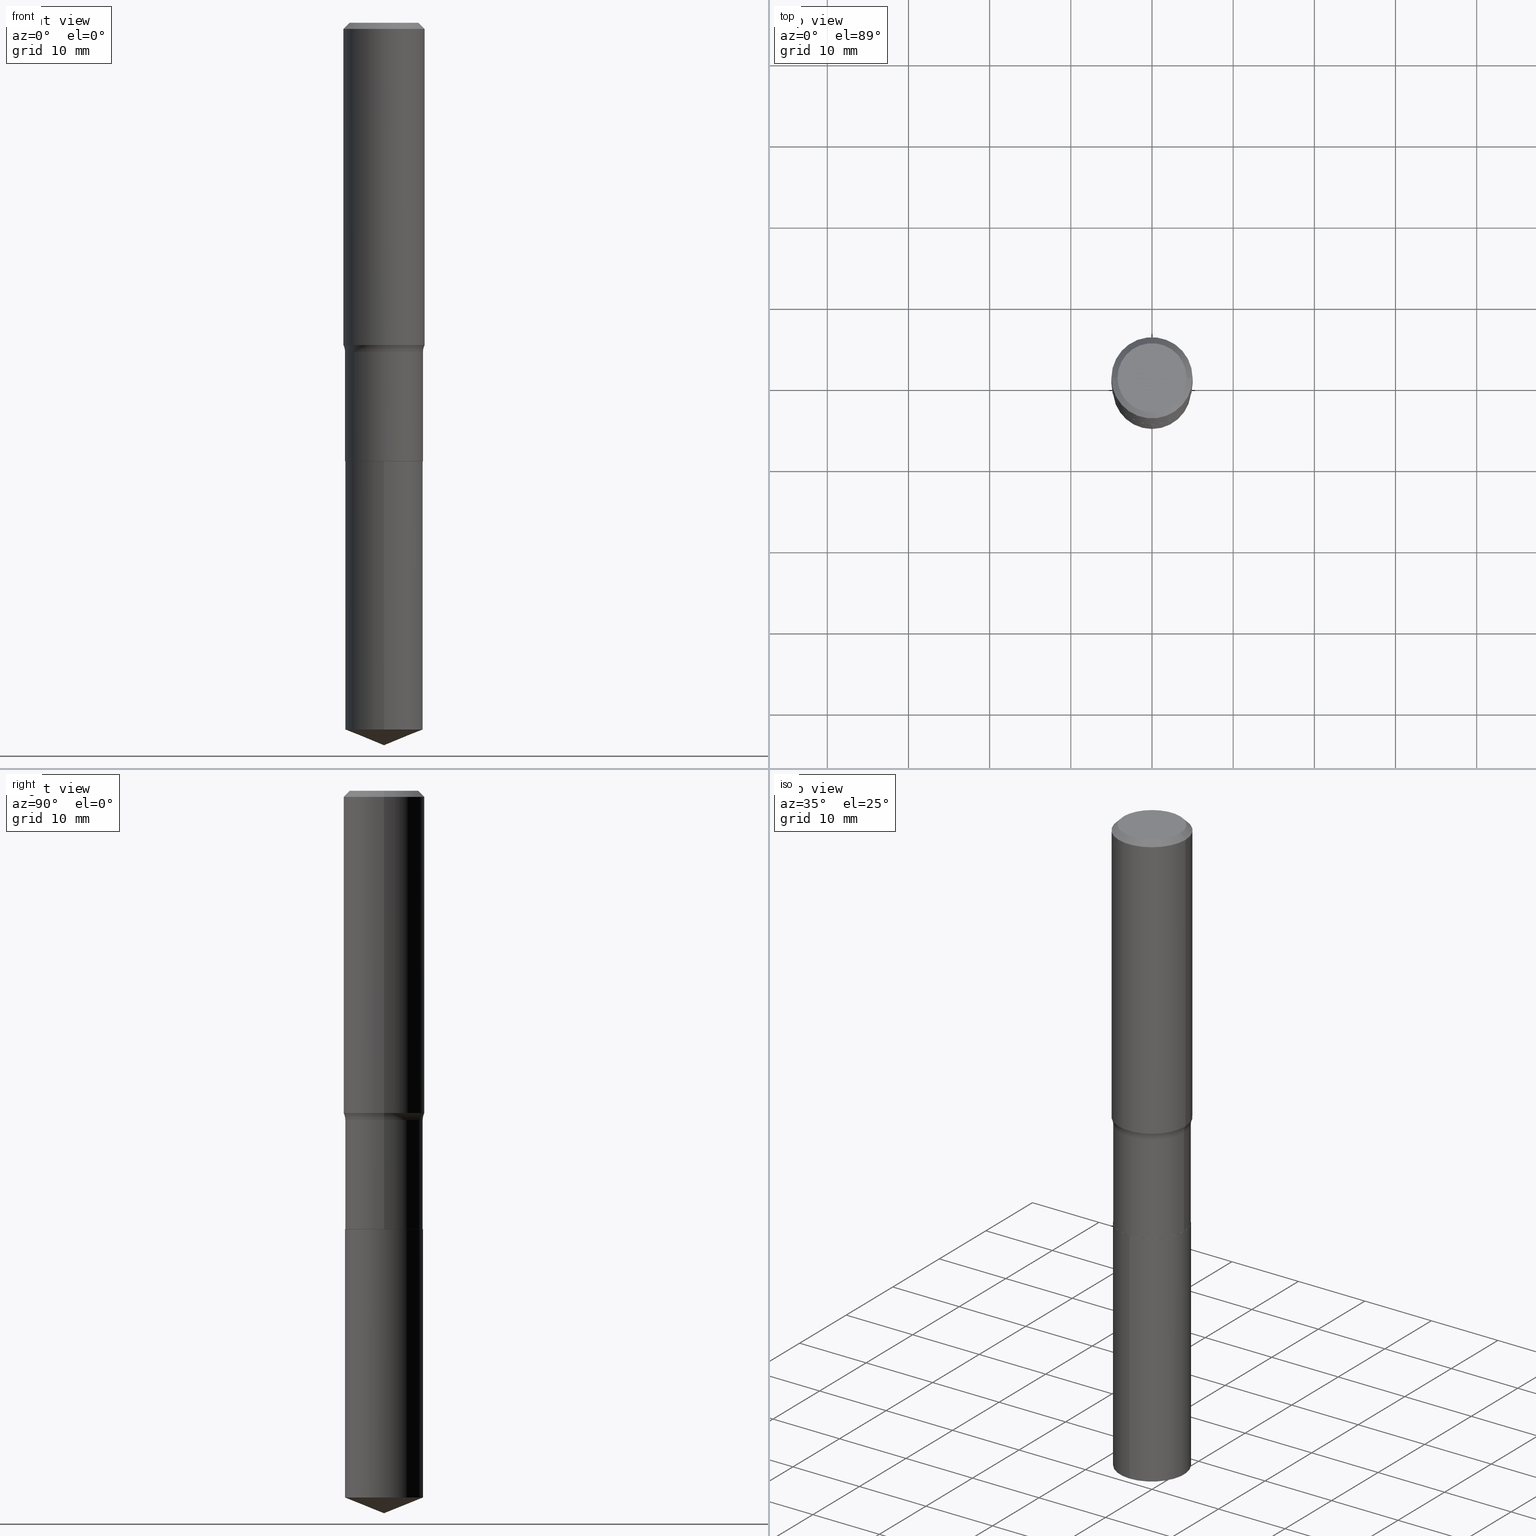
[diagram: canonical four-view strip — front | top / right | iso, engineering-drawing reading convention]
A machine part, canonical four-view strip (front | top / right | iso — engineering-drawing reading convention). The complete STEP part file that produces these views, byte-faithful:
ISO-10303-21;
HEADER;
FILE_DESCRIPTION (( 'STEP AP203' ),
    '1' );
FILE_NAME ('69186.STEP',
    '2024-04-19T17:20:39',
    ( '' ),
    ( '' ),
    'SwSTEP 2.0',
    'SolidWorks 2023',
    '' );
FILE_SCHEMA (( 'CONFIG_CONTROL_DESIGN' ));
ENDSEC;

DATA;
#1 = COORDINATED_UNIVERSAL_TIME_OFFSET ( 5, 0, .BEHIND. ) ;
#2 = CARTESIAN_POINT ( 'NONE',  ( 0.2669999999999999041, -7.439648436806966754E-15, -1.596799999999999775 ) ) ;
#3 = CALENDAR_DATE ( 2024, 19, 4 ) ;
#4 = CARTESIAN_POINT ( 'NONE',  ( 5.198822135068982087E-29, -7.422540178246643119E-15, -2.125899999999999679 ) ) ;
#5 = DIRECTION ( 'NONE',  ( 2.445468806185136597E-29, -3.491481338843145583E-15, -1.000000000000000000 ) ) ;
#6 = AXIS2_PLACEMENT_3D ( 'NONE', #312, #175, #246 ) ;
#7 = CARTESIAN_POINT ( 'NONE',  ( -0.1884999999999999731, -6.083167121338854262E-15, -2.125899999999999679 ) ) ;
#8 = AXIS2_PLACEMENT_3D ( 'NONE', #113, #35, #492 ) ;
#9 = CARTESIAN_POINT ( 'NONE',  ( -1.319779946082652162E-15, -0.1890000000000073843, -2.125899999999999235 ) ) ;
#10 = LOCAL_TIME ( 13, 20, 39.00000000000000000, #308 ) ;
#11 = ORIENTED_EDGE ( 'NONE', *, *, #340, .T. ) ;
#12 = DIRECTION ( 'NONE',  ( -2.445468806185136597E-29, 3.491481338843145583E-15, 1.000000000000000000 ) ) ;
#13 = VERTEX_POINT ( 'NONE', #84 ) ;
#14 = CARTESIAN_POINT ( 'NONE',  ( -1.319779946082652162E-15, -0.1890000000000073843, -2.125899999999999235 ) ) ;
#15 = AXIS2_PLACEMENT_3D ( 'NONE', #315, #321, #361 ) ;
#16 = AXIS2_PLACEMENT_3D ( 'NONE', #107, #27, #143 ) ;
#17 = CARTESIAN_POINT ( 'NONE',  ( -0.1889999999999999458, 1.342925770586588966E-15, -9.296787320581769859E-30 ) ) ;
#18 = PRODUCT_DEFINITION ( 'UNKNOWN', '', #359, #418 ) ;
#19 = EDGE_CURVE ( 'NONE', #316, #167, #53, .T. ) ;
#20 = DIRECTION ( 'NONE',  ( -6.982962677686265133E-15, -1.000000000000000000, 3.498761904101797187E-15 ) ) ;
#21 = ORIENTED_EDGE ( 'NONE', *, *, #441, .F. ) ;
#22 = LINE ( 'NONE', #223, #58 ) ;
#23 = ORIENTED_EDGE ( 'NONE', *, *, #269, .T. ) ;
#24 = AXIS2_PLACEMENT_3D ( 'NONE', #25, #370, #334 ) ;
#25 = CARTESIAN_POINT ( 'NONE',  ( 5.198822135068982087E-29, -7.422540178246643119E-15, -2.125899999999999679 ) ) ;
#26 = ORIENTED_EDGE ( 'NONE', *, *, #105, .T. ) ;
#27 = DIRECTION ( 'NONE',  ( -2.445468806185136597E-29, 3.491481338843145583E-15, 1.000000000000000000 ) ) ;
#28 = LINE ( 'NONE', #147, #144 ) ;
#29 = AXIS2_PLACEMENT_3D ( 'NONE', #187, #376, #295 ) ;
#30 = CARTESIAN_POINT ( 'NONE',  ( 3.821528097541712528E-29, -5.456129313399840518E-15, -1.562697544076708356 ) ) ;
#31 = EDGE_CURVE ( 'NONE', #13, #398, #94, .T. ) ;
#32 = APPROVAL_DATE_TIME ( #264, #336 ) ;
#33 = EDGE_CURVE ( 'NONE', #476, #369, #55, .T. ) ;
#34 = EDGE_LOOP ( 'NONE', ( #448, #286, #139, #397 ) ) ;
#35 = DIRECTION ( 'NONE',  ( -2.445359563184350382E-29, 3.491637781037997062E-15, 1.000000000000000000 ) ) ;
#36 = PERSON_AND_ORGANIZATION ( #383, #218 ) ;
#37 = LINE ( 'NONE', #447, #62 ) ;
#38 = DATE_AND_TIME ( #73, #444 ) ;
#39 = ORIENTED_EDGE ( 'NONE', *, *, #340, .F. ) ;
#40 = AXIS2_PLACEMENT_3D ( 'NONE', #435, #179, #335 ) ;
#41 = DIRECTION ( 'NONE',  ( 1.000000000000000000, -6.982962677686274599E-15, 0.000000000000000000 ) ) ;
#42 = PERSON_AND_ORGANIZATION ( #383, #218 ) ;
#43 = CONICAL_SURFACE ( 'NONE', #98, 0.1968500000000000527, 0.7853981633974459475 ) ;
#44 = VECTOR ( 'NONE', #102, 39.37007874015748143 ) ;
#45 = DIRECTION ( 'NONE',  ( 1.000000000000000000, -6.982962677686266711E-15, 0.000000000000000000 ) ) ;
#46 =( CONVERSION_BASED_UNIT ( 'INCH', #460 ) LENGTH_UNIT ( ) NAMED_UNIT ( #353 ) );
#47 = AXIS2_PLACEMENT_3D ( 'NONE', #408, #227, #20 ) ;
#48 = CARTESIAN_POINT ( 'NONE',  ( 0.000000000000000000, 0.000000000000000000, 0.000000000000000000 ) ) ;
#49 = AXIS2_PLACEMENT_3D ( 'NONE', #140, #64, #479 ) ;
#50 = DIRECTION ( 'NONE',  ( 1.000000000000000000, -6.982962677686265133E-15, 4.883557194083111780E-29 ) ) ;
#51 = CARTESIAN_POINT ( 'NONE',  ( 0.000000000000000000, 0.000000000000000000, 0.000000000000000000 ) ) ;
#52 = AXIS2_PLACEMENT_3D ( 'NONE', #419, #387, #45 ) ;
#53 = LINE ( 'NONE', #17, #111 ) ;
#54 = DIRECTION ( 'NONE',  ( -2.445468806185136597E-29, 3.491481338843145583E-15, 1.000000000000000000 ) ) ;
#55 = CIRCLE ( 'NONE', #6, 0.1884999999999999731 ) ;
#56 = CC_DESIGN_PERSON_AND_ORGANIZATION_ASSIGNMENT ( #235, #446, ( #359 ) ) ;
#57 = ADVANCED_FACE ( 'NONE', ( #211 ), #172, .F. ) ;
#58 = VECTOR ( 'NONE', #67, 39.37007874015748143 ) ;
#59 = EDGE_LOOP ( 'NONE', ( #326, #61 ) ) ;
#60 = CARTESIAN_POINT ( 'NONE',  ( 3.821528097541712528E-29, -5.456129313399840518E-15, -1.562697544076708356 ) ) ;
#61 = ORIENTED_EDGE ( 'NONE', *, *, #177, .T. ) ;
#62 = VECTOR ( 'NONE', #299, 39.37007874015748143 ) ;
#63 = APPROVAL_PERSON_ORGANIZATION ( #110, #356, #150 ) ;
#64 = DIRECTION ( 'NONE',  ( -2.445468806185136597E-29, 3.491481338843145583E-15, 1.000000000000000000 ) ) ;
#65 = CARTESIAN_POINT ( 'NONE',  ( 0.1889999999999999181, -6.894977347947437919E-15, -1.596799999999999775 ) ) ;
#66 = CARTESIAN_POINT ( 'NONE',  ( 0.1968500000000001082, -1.374596203102542397E-15, 9.598753983154305062E-30 ) ) ;
#67 = DIRECTION ( 'NONE',  ( -2.445359563184350382E-29, 3.491637781037997457E-15, 1.000000000000000000 ) ) ;
#68 = DIRECTION ( 'NONE',  ( 1.000000000000000000, -6.982962677686269866E-15, 0.000000000000000000 ) ) ;
#69 = VECTOR ( 'NONE', #89, 39.37007874015748143 ) ;
#70 = FACE_OUTER_BOUND ( 'NONE', #480, .T. ) ;
#71 = CALENDAR_DATE ( 2024, 19, 4 ) ;
#72 = DIRECTION ( 'NONE',  ( 2.445468806185136597E-29, -3.491481338843145583E-15, -1.000000000000000000 ) ) ;
#73 = CALENDAR_DATE ( 2024, 19, 4 ) ;
#74 = EDGE_CURVE ( 'NONE', #369, #198, #285, .T. ) ;
#75 = CARTESIAN_POINT ( 'NONE',  ( -5.008488096090108951E-47, 7.150793614331948590E-33, 2.048068690724054183E-18 ) ) ;
#76 = APPROVAL_DATE_TIME ( #156, #275 ) ;
#77 = AXIS2_PLACEMENT_3D ( 'NONE', #127, #92, #394 ) ;
#78 = EDGE_LOOP ( 'NONE', ( #252, #142 ) ) ;
#79 = AXIS2_PLACEMENT_3D ( 'NONE', #257, #97, #254 ) ;
#80 = DIRECTION ( 'NONE',  ( -2.445468806185136597E-29, 3.491481338843145583E-15, 1.000000000000000000 ) ) ;
#81 = CONICAL_SURFACE ( 'NONE', #263, 0.1968500000000000527, 0.7853981633974459475 ) ;
#82 = AXIS2_PLACEMENT_3D ( 'NONE', #30, #236, #451 ) ;
#83 = ORIENTED_EDGE ( 'NONE', *, *, #105, .F. ) ;
#84 = CARTESIAN_POINT ( 'NONE',  ( -0.1968500000000000527, -1.380908638972507920E-15, -0.02952750000000019595 ) ) ;
#85 = EDGE_CURVE ( 'NONE', #167, #233, #363, .T. ) ;
#86 = CARTESIAN_POINT ( 'NONE',  ( 5.198822135068982087E-29, -7.422540178246643119E-15, -2.125899999999999679 ) ) ;
#87 = VECTOR ( 'NONE', #260, 39.37007874015748143 ) ;
#88 = ORIENTED_EDGE ( 'NONE', *, *, #428, .T. ) ;
#89 = DIRECTION ( 'NONE',  ( -2.445359563184350382E-29, 3.491637781037997457E-15, 1.000000000000000000 ) ) ;
#90 = CC_DESIGN_APPROVAL ( #336, ( #359 ) ) ;
#91 = CC_DESIGN_PERSON_AND_ORGANIZATION_ASSIGNMENT ( #197, #490, ( #18 ) ) ;
#92 = DIRECTION ( 'NONE',  ( -2.438088387897960049E-29, 3.491481338843145188E-15, 1.000000000000000000 ) ) ;
#93 = DIRECTION ( 'NONE',  ( -2.445468806185136597E-29, 3.491481338843145583E-15, 1.000000000000000000 ) ) ;
#94 = CIRCLE ( 'NONE', #355, 0.1968500000000000527 ) ;
#95 = EDGE_LOOP ( 'NONE', ( #330, #181, #231, #184 ) ) ;
#96 = ORIENTED_EDGE ( 'NONE', *, *, #170, .F. ) ;
#97 = DIRECTION ( 'NONE',  ( -2.445468806185136597E-29, 3.491481338843145583E-15, 1.000000000000000000 ) ) ;
#98 = AXIS2_PLACEMENT_3D ( 'NONE', #158, #72, #307 ) ;
#99 = CARTESIAN_POINT ( 'NONE',  ( 0.000000000000000000, 0.000000000000000000, 0.000000000000000000 ) ) ;
#100 = ORIENTED_EDGE ( 'NONE', *, *, #33, .T. ) ;
#101 = ORIENTED_EDGE ( 'NONE', *, *, #224, .F. ) ;
#102 = DIRECTION ( 'NONE',  ( -2.445468806185136877E-29, 3.491481338843145188E-15, 1.000000000000000000 ) ) ;
#103 = DIRECTION ( 'NONE',  ( -0.7071067811866199593, 7.493145998870616062E-15, 0.7071067811864750752 ) ) ;
#104 = CC_DESIGN_APPROVAL ( #275, ( #18 ) ) ;
#105 = EDGE_CURVE ( 'NONE', #222, #123, #470, .T. ) ;
#106 = ADVANCED_FACE ( 'NONE', ( #399 ), #458, .T. ) ;
#107 = CARTESIAN_POINT ( 'NONE',  ( 0.000000000000000000, 0.000000000000000000, 0.000000000000000000 ) ) ;
#108 = COORDINATED_UNIVERSAL_TIME_OFFSET ( 5, 0, .BEHIND. ) ;
#109 = CARTESIAN_POINT ( 'NONE',  ( -0.2669999999999999041, -3.678048297385267075E-15, -1.596799999999999775 ) ) ;
#110 = PERSON_AND_ORGANIZATION ( #383, #218 ) ;
#111 = VECTOR ( 'NONE', #165, 39.37007874015748143 ) ;
#112 = ORIENTED_EDGE ( 'NONE', *, *, #238, .F. ) ;
#113 = CARTESIAN_POINT ( 'NONE',  ( -8.770547093742795597E-28, 1.252320373310577024E-13, 35.86617874015747987 ) ) ;
#114 = ADVANCED_FACE ( 'NONE', ( #401 ), #462, .F. ) ;
#115 = APPROVAL_ROLE ( '' ) ;
#116 = ORIENTED_EDGE ( 'NONE', *, *, #391, .F. ) ;
#117 = SECURITY_CLASSIFICATION ( '', '', #274 ) ;
#118 = FACE_OUTER_BOUND ( 'NONE', #59, .T. ) ;
#119 = APPLICATION_CONTEXT ( 'configuration controlled 3d designs of mechanical parts and assemblies' ) ;
#120 = APPLICATION_PROTOCOL_DEFINITION ( 'international standard', 'config_control_design', 1994, #489 ) ;
#121 = CARTESIAN_POINT ( 'NONE',  ( 8.381797617458719247E-29, -1.196739223916697963E-14, -3.427539043317155976 ) ) ;
#122 = CLOSED_SHELL ( 'NONE', ( #106, #377, #220, #57, #237, #155, #162, #396, #482, #305, #114, #319 ) ) ;
#123 = VERTEX_POINT ( 'NONE', #14 ) ;
#124 = DIRECTION ( 'NONE',  ( -2.445359563184350382E-29, 3.491637781037997062E-15, 1.000000000000000000 ) ) ;
#125 = EDGE_LOOP ( 'NONE', ( #186, #163, #146, #250 ) ) ;
#126 = CC_DESIGN_DATE_AND_TIME_ASSIGNMENT ( #38, #148, ( #117 ) ) ;
#127 = CARTESIAN_POINT ( 'NONE',  ( 5.198822135068982087E-29, -7.422540178246643119E-15, -2.125899999999999679 ) ) ;
#128 = FACE_OUTER_BOUND ( 'NONE', #364, .T. ) ;
#129 = AXIS2_PLACEMENT_3D ( 'NONE', #471, #54, #429 ) ;
#130 = ORIENTED_EDGE ( 'NONE', *, *, #491, .T. ) ;
#131 = DIRECTION ( 'NONE',  ( -2.445468806185136597E-29, 3.491481338843145583E-15, 1.000000000000000000 ) ) ;
#132 = CC_DESIGN_PERSON_AND_ORGANIZATION_ASSIGNMENT ( #487, #455, ( #117 ) ) ;
#133 = AXIS2_PLACEMENT_3D ( 'NONE', #75, #454, #381 ) ;
#134 = FACE_OUTER_BOUND ( 'NONE', #309, .T. ) ;
#135 = ORIENTED_EDGE ( 'NONE', *, *, #19, .F. ) ;
#136 = ORIENTED_EDGE ( 'NONE', *, *, #268, .T. ) ;
#137 = FACE_OUTER_BOUND ( 'NONE', #332, .T. ) ;
#138 = CIRCLE ( 'NONE', #49, 0.1673224999999999851 ) ;
#139 = ORIENTED_EDGE ( 'NONE', *, *, #276, .T. ) ;
#140 = CARTESIAN_POINT ( 'NONE',  ( -1.001697619218021790E-46, 1.430158722866389718E-32, 4.096137381448108366E-18 ) ) ;
#141 = CARTESIAN_POINT ( 'NONE',  ( -0.1673224999999999851, 1.219954130253505460E-15, 4.096137381439757534E-18 ) ) ;
#142 = ORIENTED_EDGE ( 'NONE', *, *, #33, .F. ) ;
#143 = DIRECTION ( 'NONE',  ( 1.000000000000000000, -6.982962677686266711E-15, 4.876176775795935793E-29 ) ) ;
#144 = VECTOR ( 'NONE', #329, 39.37007874015748143 ) ;
#145 = ADVANCED_FACE ( 'NONE', ( #128 ), #427, .T. ) ;
#146 = ORIENTED_EDGE ( 'NONE', *, *, #201, .T. ) ;
#147 = CARTESIAN_POINT ( 'NONE',  ( 0.1889999999999999458, -1.319779946082704030E-15, 9.215974106254316519E-30 ) ) ;
#148 = DATE_TIME_ROLE ( 'classification_date' ) ;
#149 = CARTESIAN_POINT ( 'NONE',  ( 0.1968500000000000527, -1.477690918335233688E-15, -0.02952750000000019595 ) ) ;
#150 = APPROVAL_ROLE ( '' ) ;
#151 = ORIENTED_EDGE ( 'NONE', *, *, #224, .T. ) ;
#152 = DIRECTION ( 'NONE',  ( -1.000000000000000000, 7.105427357601001859E-15, 0.000000000000000000 ) ) ;
#153 = VERTEX_POINT ( 'NONE', #281 ) ;
#154 = CARTESIAN_POINT ( 'NONE',  ( 5.198822135068982087E-29, -7.422540178246643119E-15, -2.125899999999999679 ) ) ;
#155 = ADVANCED_FACE ( 'NONE', ( #134 ), #214, .T. ) ;
#156 = DATE_AND_TIME ( #378, #338 ) ;
#157 = ORIENTED_EDGE ( 'NONE', *, *, #391, .T. ) ;
#158 = CARTESIAN_POINT ( 'NONE',  ( 7.220858017463209485E-31, -1.030947152326916609E-16, -0.02952750000000019595 ) ) ;
#159 = CALENDAR_DATE ( 2024, 19, 4 ) ;
#160 = DIRECTION ( 'NONE',  ( -6.982962677686265922E-15, -1.000000000000000000, 2.890844437739961472E-15 ) ) ;
#161 = MANIFOLD_SOLID_BREP ( 'Body-Move/Copy2[1]', #345 ) ;
#162 = ADVANCED_FACE ( 'NONE', ( #467 ), #212, .F. ) ;
#163 = ORIENTED_EDGE ( 'NONE', *, *, #362, .F. ) ;
#164 = DIRECTION ( 'NONE',  ( 6.588037525764799179E-15, 0.9271838545667900888, 0.3746065934159051869 ) ) ;
#165 = DIRECTION ( 'NONE',  ( -2.445468806185136877E-29, 3.491481338843145188E-15, 1.000000000000000000 ) ) ;
#166 = LINE ( 'NONE', #390, #424 ) ;
#167 = VERTEX_POINT ( 'NONE', #173 ) ;
#168 = DIRECTION ( 'NONE',  ( 1.000000000000000000, -6.982962677686266711E-15, 4.876176775795935793E-29 ) ) ;
#169 = CC_DESIGN_PERSON_AND_ORGANIZATION_ASSIGNMENT ( #36, #452, ( #359 ) ) ;
#170 = EDGE_CURVE ( 'NONE', #476, #316, #354, .T. ) ;
#171 = MANIFOLD_SOLID_BREP ( 'Body-Move/Copy2[2]', #122 ) ;
#172 = TOROIDAL_SURFACE ( 'NONE', #242, 0.2669999999999999041, 0.07799999999999999989 ) ;
#173 = CARTESIAN_POINT ( 'NONE',  ( -0.1889999999999999181, -5.155070149134388786E-15, -1.596799999999999775 ) ) ;
#174 = CIRCLE ( 'NONE', #239, 0.1889999999999999736 ) ;
#175 = DIRECTION ( 'NONE',  ( -2.445468806185136597E-29, 3.491481338843145583E-15, 1.000000000000000000 ) ) ;
#176 = CARTESIAN_POINT ( 'NONE',  ( 0.1889999999999999736, -8.740574383659924856E-15, -2.125399999999999956 ) ) ;
#177 = EDGE_CURVE ( 'NONE', #317, #259, #138, .T. ) ;
#178 = VERTEX_POINT ( 'NONE', #296 ) ;
#179 = DIRECTION ( 'NONE',  ( -2.445359563184350382E-29, 3.491637781037997062E-15, 1.000000000000000000 ) ) ;
#180 = VECTOR ( 'NONE', #292, 39.37007874015748143 ) ;
#181 = ORIENTED_EDGE ( 'NONE', *, *, #170, .T. ) ;
#182 = CIRCLE ( 'NONE', #461, 0.1968500000000000527 ) ;
#183 = DIRECTION ( 'NONE',  ( 2.445359563184349822E-29, -3.491637781037997457E-15, -1.000000000000000000 ) ) ;
#184 = ORIENTED_EDGE ( 'NONE', *, *, #74, .F. ) ;
#185 = LOCAL_TIME ( 13, 20, 39.00000000000000000, #1 ) ;
#186 = ORIENTED_EDGE ( 'NONE', *, *, #269, .F. ) ;
#187 = CARTESIAN_POINT ( 'NONE',  ( 5.197599400665889285E-29, -7.420794437577220826E-15, -2.125399999999999956 ) ) ;
#188 = DIRECTION ( 'NONE',  ( -2.445468806185136597E-29, 3.491481338843145583E-15, 1.000000000000000000 ) ) ;
#189 = CARTESIAN_POINT ( 'NONE',  ( 7.220858017463209485E-31, -1.030947152326916609E-16, -0.02952750000000019595 ) ) ;
#190 = VECTOR ( 'NONE', #273, 39.37007874015748143 ) ;
#191 = CARTESIAN_POINT ( 'NONE',  ( -0.1889999999999999736, -5.155070149134388786E-15, -2.125399999999999956 ) ) ;
#192 = ORIENTED_EDGE ( 'NONE', *, *, #177, .F. ) ;
#193 = DIRECTION ( 'NONE',  ( -2.445468806185136597E-29, 3.491481338843145583E-15, 1.000000000000000000 ) ) ;
#194 = APPROVAL_ROLE ( '' ) ;
#195 = CARTESIAN_POINT ( 'NONE',  ( -1.001697619218021790E-46, 1.430158722866389718E-32, 4.096137381448108366E-18 ) ) ;
#196 = AXIS2_PLACEMENT_3D ( 'NONE', #109, #232, #152 ) ;
#197 = PERSON_AND_ORGANIZATION ( #383, #218 ) ;
#198 = VERTEX_POINT ( 'NONE', #176 ) ;
#199 = CARTESIAN_POINT ( 'NONE',  ( 5.198822135068982087E-29, -7.422540178246643119E-15, -2.125899999999999679 ) ) ;
#200 = EDGE_CURVE ( 'NONE', #316, #198, #325, .T. ) ;
#201 = EDGE_CURVE ( 'NONE', #259, #13, #265, .T. ) ;
#202 = DIRECTION ( 'NONE',  ( 1.000000000000000000, -6.982962677686265133E-15, 4.883557194083111780E-29 ) ) ;
#203 = ADVANCED_FACE ( 'NONE', ( #226 ), #445, .T. ) ;
#204 = EDGE_LOOP ( 'NONE', ( #116, #432, #403, #151 ) ) ;
#205 = CIRCLE ( 'NONE', #318, 0.1673224999999999851 ) ;
#206 = EDGE_CURVE ( 'NONE', #217, #222, #301, .T. ) ;
#207 = DIRECTION ( 'NONE',  ( 0.000000000000000000, 0.000000000000000000, 1.000000000000000000 ) ) ;
#208 = EDGE_LOOP ( 'NONE', ( #406, #157, #453, #302 ) ) ;
#209 = ORIENTED_EDGE ( 'NONE', *, *, #238, .T. ) ;
#210 = VERTEX_POINT ( 'NONE', #324 ) ;
#211 = FACE_OUTER_BOUND ( 'NONE', #208, .T. ) ;
#212 = TOROIDAL_SURFACE ( 'NONE', #261, 0.2669999999999999041, 0.07799999999999999989 ) ;
#213 = AXIS2_PLACEMENT_3D ( 'NONE', #475, #183, #375 ) ;
#214 = CYLINDRICAL_SURFACE ( 'NONE', #468, 0.1889999999999999458 ) ;
#215 = ORIENTED_EDGE ( 'NONE', *, *, #225, .F. ) ;
#216 = DIRECTION ( 'NONE',  ( 1.000000000000000000, -6.982962677686266711E-15, 0.000000000000000000 ) ) ;
#217 = VERTEX_POINT ( 'NONE', #485 ) ;
#218 = ORGANIZATION ( 'UNSPECIFIED', 'UNSPECIFIED', '' ) ;
#219 = ADVANCED_FACE ( 'NONE', ( #372 ), #477, .F. ) ;
#220 = ADVANCED_FACE ( 'NONE', ( #481 ), #438, .T. ) ;
#221 = CARTESIAN_POINT ( 'NONE',  ( 0.1968500000000000527, -1.453583746094018101E-15, -0.02952750000000019595 ) ) ;
#222 = VERTEX_POINT ( 'NONE', #262 ) ;
#223 = CARTESIAN_POINT ( 'NONE',  ( 1.342925770586640834E-15, 0.1889999999999925628, -2.125900000000000567 ) ) ;
#224 = EDGE_CURVE ( 'NONE', #233, #167, #297, .T. ) ;
#225 = EDGE_CURVE ( 'NONE', #198, #233, #28, .T. ) ;
#226 = FACE_OUTER_BOUND ( 'NONE', #402, .T. ) ;
#227 = DIRECTION ( 'NONE',  ( -2.445359563184350382E-29, 3.491637781037997062E-15, 1.000000000000000000 ) ) ;
#228 = CARTESIAN_POINT ( 'NONE',  ( -0.1884999999999999731, -6.080517894164743061E-15, -2.125899999999999679 ) ) ;
#229 = ORIENTED_EDGE ( 'NONE', *, *, #276, .F. ) ;
#230 = CARTESIAN_POINT ( 'NONE',  ( 0.000000000000000000, 0.000000000000000000, 0.000000000000000000 ) ) ;
#231 = ORIENTED_EDGE ( 'NONE', *, *, #456, .F. ) ;
#232 = DIRECTION ( 'NONE',  ( 7.105427357601001859E-15, 1.000000000000000000, -3.491481338843145583E-15 ) ) ;
#233 = VERTEX_POINT ( 'NONE', #65 ) ;
#234 = CARTESIAN_POINT ( 'NONE',  ( 0.1673224999999999851, -1.300749711163072594E-15, 4.096137381456741925E-18 ) ) ;
#235 = PERSON_AND_ORGANIZATION ( #383, #218 ) ;
#236 = DIRECTION ( 'NONE',  ( -2.445468806185136597E-29, 3.491481338843145583E-15, 1.000000000000000000 ) ) ;
#237 = ADVANCED_FACE ( 'NONE', ( #137 ), #298, .T. ) ;
#238 = EDGE_CURVE ( 'NONE', #217, #426, #22, .T. ) ;
#239 = AXIS2_PLACEMENT_3D ( 'NONE', #154, #379, #160 ) ;
#240 = APPLICATION_PROTOCOL_DEFINITION ( 'international standard', 'config_control_design', 1994, #119 ) ;
#241 = DIRECTION ( 'NONE',  ( 1.000000000000000000, -6.982962677686266711E-15, 0.000000000000000000 ) ) ;
#242 = AXIS2_PLACEMENT_3D ( 'NONE', #314, #465, #50 ) ;
#243 = DIRECTION ( 'NONE',  ( -2.445359563184350382E-29, 3.491637781037997062E-15, 1.000000000000000000 ) ) ;
#244 = ADVANCED_BREP_SHAPE_REPRESENTATION ( '69186', ( #161, #171, #349 ), #395 ) ;
#245 = ORIENTED_EDGE ( 'NONE', *, *, #439, .F. ) ;
#246 = DIRECTION ( 'NONE',  ( 1.000000000000000000, -6.982962677686269866E-15, 0.000000000000000000 ) ) ;
#247 = DIRECTION ( 'NONE',  ( 0.7071067811866199593, -2.468850131083015945E-15, 0.7071067811864750752 ) ) ;
#248 = CARTESIAN_POINT ( 'NONE',  ( 0.1884999999999999731, -8.738828642990504141E-15, -2.125899999999999679 ) ) ;
#249 = CC_DESIGN_PERSON_AND_ORGANIZATION_ASSIGNMENT ( #279, #422, ( #350 ) ) ;
#250 = ORIENTED_EDGE ( 'NONE', *, *, #31, .T. ) ;
#251 = CONICAL_SURFACE ( 'NONE', #430, 0.1884999999999999731, 0.7853981633975507526 ) ;
#252 = ORIENTED_EDGE ( 'NONE', *, *, #473, .F. ) ;
#253 = EDGE_LOOP ( 'NONE', ( #343, #11, #256 ) ) ;
#254 = DIRECTION ( 'NONE',  ( 1.000000000000000000, -6.982962677686269077E-15, 0.000000000000000000 ) ) ;
#255 = ADVANCED_FACE ( 'NONE', ( #443 ), #278, .T. ) ;
#256 = ORIENTED_EDGE ( 'NONE', *, *, #206, .F. ) ;
#257 = CARTESIAN_POINT ( 'NONE',  ( 3.904924589716425410E-29, -5.575197401864733889E-15, -1.596799999999999775 ) ) ;
#258 = EDGE_CURVE ( 'NONE', #178, #153, #484, .T. ) ;
#259 = VERTEX_POINT ( 'NONE', #141 ) ;
#260 = DIRECTION ( 'NONE',  ( 0.7071067811865459074, -7.319954787623251312E-15, -0.7071067811865492381 ) ) ;
#261 = AXIS2_PLACEMENT_3D ( 'NONE', #289, #93, #202 ) ;
#262 = CARTESIAN_POINT ( 'NONE',  ( -1.319779946082620410E-15, -0.1890000000000119362, -3.427539043317155532 ) ) ;
#263 = AXIS2_PLACEMENT_3D ( 'NONE', #189, #5, #282 ) ;
#264 = DATE_AND_TIME ( #71, #272 ) ;
#265 = LINE ( 'NONE', #327, #180 ) ;
#266 = COORDINATED_UNIVERSAL_TIME_OFFSET ( 5, 0, .BEHIND. ) ;
#267 = CARTESIAN_POINT ( 'NONE',  ( 1.342925770586672980E-15, 0.1889999999999925628, -2.125900000000000567 ) ) ;
#268 = EDGE_CURVE ( 'NONE', #153, #13, #440, .T. ) ;
#269 = EDGE_CURVE ( 'NONE', #317, #398, #404, .T. ) ;
#270 = DIRECTION ( 'NONE',  ( 1.000000000000000000, -6.982962677686269866E-15, 0.000000000000000000 ) ) ;
#271 = CIRCLE ( 'NONE', #196, 0.07799999999999995826 ) ;
#272 = LOCAL_TIME ( 13, 20, 39.00000000000000000, #266 ) ;
#273 = DIRECTION ( 'NONE',  ( -2.445468806185136877E-29, 3.491481338843145188E-15, 1.000000000000000000 ) ) ;
#274 = SECURITY_CLASSIFICATION_LEVEL ( 'unclassified' ) ;
#275 = APPROVAL ( #386, 'UNSPECIFIED' ) ;
#276 = EDGE_CURVE ( 'NONE', #178, #398, #407, .T. ) ;
#277 = DIRECTION ( 'NONE',  ( -2.445359563184350382E-29, 3.491637781037997062E-15, 1.000000000000000000 ) ) ;
#278 = CONICAL_SURFACE ( 'NONE', #47, 97.44436430772927338, 1.186823891356147964 ) ;
#279 = PERSON_AND_ORGANIZATION ( #383, #218 ) ;
#280 =( NAMED_UNIT ( * ) PLANE_ANGLE_UNIT ( ) SI_UNIT ( $, .RADIAN. ) );
#281 = CARTESIAN_POINT ( 'NONE',  ( -0.1968500000000001915, -4.057425938056081941E-15, -1.562697544076708356 ) ) ;
#282 = DIRECTION ( 'NONE',  ( -1.000000000000000000, 6.982962677686266711E-15, 0.000000000000000000 ) ) ;
#283 = EDGE_LOOP ( 'NONE', ( #96, #100, #373, #410 ) ) ;
#284 = ORIENTED_EDGE ( 'NONE', *, *, #258, .T. ) ;
#285 = LINE ( 'NONE', #248, #442 ) ;
#286 = ORIENTED_EDGE ( 'NONE', *, *, #436, .T. ) ;
#287 = EDGE_LOOP ( 'NONE', ( #39, #130, #21 ) ) ;
#288 = EDGE_CURVE ( 'NONE', #178, #233, #374, .T. ) ;
#289 = CARTESIAN_POINT ( 'NONE',  ( 3.904924589716425410E-29, -5.575197401864733889E-15, -1.596799999999999775 ) ) ;
#290 = EDGE_CURVE ( 'NONE', #398, #13, #182, .T. ) ;
#291 = ORIENTED_EDGE ( 'NONE', *, *, #456, .T. ) ;
#292 = DIRECTION ( 'NONE',  ( -0.7071067811865459074, 2.468850131082239706E-15, -0.7071067811865492381 ) ) ;
#293 = DIRECTION ( 'NONE',  ( 1.000000000000000000, -6.982962677686266711E-15, 4.876176775795935793E-29 ) ) ;
#294 = CIRCLE ( 'NONE', #368, 0.1889999999999999736 ) ;
#295 = DIRECTION ( 'NONE',  ( 1.000000000000000000, -6.982962677686266711E-15, 0.000000000000000000 ) ) ;
#296 = CARTESIAN_POINT ( 'NONE',  ( 0.1968500000000001915, -6.830725516502383704E-15, -1.562697544076708356 ) ) ;
#297 = CIRCLE ( 'NONE', #79, 0.1889999999999999181 ) ;
#298 = CYLINDRICAL_SURFACE ( 'NONE', #16, 0.1889999999999999458 ) ;
#299 = DIRECTION ( 'NONE',  ( -6.474490251793185729E-15, -0.9271838545667875353, 0.3746065934159116817 ) ) ;
#300 = CARTESIAN_POINT ( 'NONE',  ( 7.220858017463209485E-31, -1.030947152326916609E-16, -0.02952750000000019595 ) ) ;
#301 = CIRCLE ( 'NONE', #40, 0.1889999999999999736 ) ;
#302 = ORIENTED_EDGE ( 'NONE', *, *, #288, .F. ) ;
#303 = CARTESIAN_POINT ( 'NONE',  ( 5.198822135068982087E-29, -7.422540178246643119E-15, -2.125899999999999679 ) ) ;
#304 = ADVANCED_FACE ( 'NONE', ( #352 ), #450, .T. ) ;
#305 = ADVANCED_FACE ( 'NONE', ( #118 ), #416, .F. ) ;
#306 = DATE_AND_TIME ( #159, #10 ) ;
#307 = DIRECTION ( 'NONE',  ( -1.000000000000000000, 6.982962677686266711E-15, 0.000000000000000000 ) ) ;
#308 = COORDINATED_UNIVERSAL_TIME_OFFSET ( 5, 0, .BEHIND. ) ;
#309 = EDGE_LOOP ( 'NONE', ( #135, #360, #466, #322 ) ) ;
#310 = DIRECTION ( 'NONE',  ( -6.982962677686265922E-15, -1.000000000000000000, 2.890844437739961472E-15 ) ) ;
#311 =( LENGTH_UNIT ( ) NAMED_UNIT ( * ) SI_UNIT ( $, .METRE. ) );
#312 = CARTESIAN_POINT ( 'NONE',  ( 5.198822135068982087E-29, -7.422540178246643119E-15, -2.125899999999999679 ) ) ;
#313 = MECHANICAL_CONTEXT ( 'NONE', #119, 'mechanical' ) ;
#314 = CARTESIAN_POINT ( 'NONE',  ( 3.904924589716425410E-29, -5.575197401864733889E-15, -1.596799999999999775 ) ) ;
#315 = CARTESIAN_POINT ( 'NONE',  ( 3.904924589716425410E-29, -5.575197401864733889E-15, -1.596799999999999775 ) ) ;
#316 = VERTEX_POINT ( 'NONE', #191 ) ;
#317 = VERTEX_POINT ( 'NONE', #234 ) ;
#318 = AXIS2_PLACEMENT_3D ( 'NONE', #195, #193, #341 ) ;
#319 = ADVANCED_FACE ( 'NONE', ( #347 ), #251, .T. ) ;
#320 = CC_DESIGN_SECURITY_CLASSIFICATION ( #117, ( #359 ) ) ;
#321 = DIRECTION ( 'NONE',  ( -2.445468806185136597E-29, 3.491481338843145583E-15, 1.000000000000000000 ) ) ;
#322 = ORIENTED_EDGE ( 'NONE', *, *, #85, .F. ) ;
#323 = ORIENTED_EDGE ( 'NONE', *, *, #201, .F. ) ;
#324 = CARTESIAN_POINT ( 'NONE',  ( 8.568295373441645346E-29, -1.223434962097903768E-14, -3.503899999999999793 ) ) ;
#325 = CIRCLE ( 'NONE', #29, 0.1889999999999999736 ) ;
#326 = ORIENTED_EDGE ( 'NONE', *, *, #362, .T. ) ;
#327 = CARTESIAN_POINT ( 'NONE',  ( -0.1968500000000000527, 1.271501487869850317E-15, -0.02952750000000019595 ) ) ;
#328 = ORIENTED_EDGE ( 'NONE', *, *, #441, .T. ) ;
#329 = DIRECTION ( 'NONE',  ( -2.445468806185136877E-29, 3.491481338843145188E-15, 1.000000000000000000 ) ) ;
#330 = ORIENTED_EDGE ( 'NONE', *, *, #473, .T. ) ;
#331 = APPROVAL_PERSON_ORGANIZATION ( #42, #275, #194 ) ;
#332 = EDGE_LOOP ( 'NONE', ( #291, #417, #101, #215 ) ) ;
#333 = AXIS2_PLACEMENT_3D ( 'NONE', #199, #411, #68 ) ;
#334 = DIRECTION ( 'NONE',  ( -6.982962677686265922E-15, -1.000000000000000000, 2.890844437739961472E-15 ) ) ;
#335 = DIRECTION ( 'NONE',  ( -6.982962677686265922E-15, -1.000000000000000000, 2.890844437739961472E-15 ) ) ;
#336 = APPROVAL ( #380, 'UNSPECIFIED' ) ;
#337 = FACE_OUTER_BOUND ( 'NONE', #125, .T. ) ;
#338 = LOCAL_TIME ( 13, 20, 39.00000000000000000, #108 ) ;
#339 = PERSON_AND_ORGANIZATION ( #383, #218 ) ;
#340 = EDGE_CURVE ( 'NONE', #210, #222, #37, .T. ) ;
#341 = DIRECTION ( 'NONE',  ( 1.000000000000000000, -6.982962677686267499E-15, 4.876294436782262290E-29 ) ) ;
#342 = APPROVAL_STATUS ( 'not_yet_approved' ) ;
#343 = ORIENTED_EDGE ( 'NONE', *, *, #491, .F. ) ;
#344 = DIRECTION ( 'NONE',  ( 1.000000000000000000, -6.982962677686266711E-15, 4.876176775795935793E-29 ) ) ;
#345 = CLOSED_SHELL ( 'NONE', ( #203, #255, #304, #145, #219 ) ) ;
#346 = APPROVAL_DATE_TIME ( #409, #356 ) ;
#347 = FACE_OUTER_BOUND ( 'NONE', #283, .T. ) ;
#348 = DATE_TIME_ROLE ( 'creation_date' ) ;
#349 = AXIS2_PLACEMENT_3D ( 'NONE', #48, #207, #357 ) ;
#350 = PRODUCT ( '69186', '69186', '', ( #313 ) ) ;
#351 = CIRCLE ( 'NONE', #333, 0.1884999999999999731 ) ;
#352 = FACE_OUTER_BOUND ( 'NONE', #253, .T. ) ;
#353 = DIMENSIONAL_EXPONENTS ( 1.000000000000000000, 0.000000000000000000, 0.000000000000000000, 0.000000000000000000, 0.000000000000000000, 0.000000000000000000, 0.000000000000000000 ) ;
#354 = LINE ( 'NONE', #7, #483 ) ;
#355 = AXIS2_PLACEMENT_3D ( 'NONE', #358, #131, #241 ) ;
#356 = APPROVAL ( #342, 'UNSPECIFIED' ) ;
#357 = DIRECTION ( 'NONE',  ( 1.000000000000000000, 0.000000000000000000, 0.000000000000000000 ) ) ;
#358 = CARTESIAN_POINT ( 'NONE',  ( 7.220858017463209485E-31, -1.030947152326916609E-16, -0.02952750000000019595 ) ) ;
#359 = PRODUCT_DEFINITION_FORMATION_WITH_SPECIFIED_SOURCE ( 'ANY', '', #350, .NOT_KNOWN. ) ;
#360 = ORIENTED_EDGE ( 'NONE', *, *, #200, .T. ) ;
#361 = DIRECTION ( 'NONE',  ( 1.000000000000000000, -6.982962677686269077E-15, 0.000000000000000000 ) ) ;
#362 = EDGE_CURVE ( 'NONE', #259, #317, #205, .T. ) ;
#363 = CIRCLE ( 'NONE', #15, 0.1889999999999999181 ) ;
#364 = EDGE_LOOP ( 'NONE', ( #112, #459, #26, #434 ) ) ;
#365 = CIRCLE ( 'NONE', #82, 0.1968500000000001915 ) ;
#366 = APPROVAL_PERSON_ORGANIZATION ( #339, #336, #115 ) ;
#367 = CARTESIAN_POINT ( 'NONE',  ( -0.1968500000000001082, 1.398703375343757985E-15, -9.682923725166787881E-30 ) ) ;
#368 = AXIS2_PLACEMENT_3D ( 'NONE', #303, #124, #385 ) ;
#369 = VERTEX_POINT ( 'NONE', #413 ) ;
#370 = DIRECTION ( 'NONE',  ( -2.445359563184350382E-29, 3.491637781037997062E-15, 1.000000000000000000 ) ) ;
#371 = EDGE_LOOP ( 'NONE', ( #284, #136, #415, #229 ) ) ;
#372 = FACE_OUTER_BOUND ( 'NONE', #393, .T. ) ;
#373 = ORIENTED_EDGE ( 'NONE', *, *, #74, .T. ) ;
#374 = CIRCLE ( 'NONE', #437, 0.07799999999999995826 ) ;
#375 = DIRECTION ( 'NONE',  ( 6.982962677686265922E-15, 1.000000000000000000, -3.491637781037997457E-15 ) ) ;
#376 = DIRECTION ( 'NONE',  ( -2.445468806185136597E-29, 3.491481338843145583E-15, 1.000000000000000000 ) ) ;
#377 = ADVANCED_FACE ( 'NONE', ( #70 ), #43, .T. ) ;
#378 = CALENDAR_DATE ( 2024, 19, 4 ) ;
#379 = DIRECTION ( 'NONE',  ( -2.445359563184350382E-29, 3.491637781037997062E-15, 1.000000000000000000 ) ) ;
#380 = APPROVAL_STATUS ( 'not_yet_approved' ) ;
#381 = DIRECTION ( 'NONE',  ( -1.000000000000000000, 6.982962677686265922E-15, -4.876176775795935793E-29 ) ) ;
#382 = COORDINATED_UNIVERSAL_TIME_OFFSET ( 5, 0, .BEHIND. ) ;
#383 = PERSON ( 'UNSPECIFIED', 'UNSPECIFIED', 'UNSPECIFIED', ('UNSPECIFIED'), ('UNSPECIFIED'), ('UNSPECIFIED') ) ;
#384 = CYLINDRICAL_SURFACE ( 'NONE', #388, 0.1968500000000001082 ) ;
#385 = DIRECTION ( 'NONE',  ( -6.982962677686265922E-15, -1.000000000000000000, 2.890844437739961472E-15 ) ) ;
#386 = APPROVAL_STATUS ( 'not_yet_approved' ) ;
#387 = DIRECTION ( 'NONE',  ( -2.445468806185136597E-29, 3.491481338843145583E-15, 1.000000000000000000 ) ) ;
#388 = AXIS2_PLACEMENT_3D ( 'NONE', #230, #80, #344 ) ;
#389 = AXIS2_PLACEMENT_3D ( 'NONE', #121, #277, #310 ) ;
#390 = CARTESIAN_POINT ( 'NONE',  ( 8.568763925768371562E-29, -1.223368446005496745E-14, -3.503899999999999793 ) ) ;
#391 = EDGE_CURVE ( 'NONE', #153, #167, #271, .T. ) ;
#392 = UNCERTAINTY_MEASURE_WITH_UNIT (LENGTH_MEASURE( 1.000000000000000082E-05 ), #46, 'distance_accuracy_value', 'NONE');
#393 = EDGE_LOOP ( 'NONE', ( #469, #88 ) ) ;
#394 = DIRECTION ( 'NONE',  ( 1.000000000000000000, -6.982962677686265922E-15, 4.876176775795935793E-29 ) ) ;
#395 =( GEOMETRIC_REPRESENTATION_CONTEXT ( 3 ) GLOBAL_UNCERTAINTY_ASSIGNED_CONTEXT ( ( #392 ) ) GLOBAL_UNIT_ASSIGNED_CONTEXT ( ( #46, #280, #425 ) ) REPRESENTATION_CONTEXT ( 'NONE', 'WORKASPACE' ) );
#396 = ADVANCED_FACE ( 'NONE', ( #486 ), #384, .T. ) ;
#397 = ORIENTED_EDGE ( 'NONE', *, *, #31, .F. ) ;
#398 = VERTEX_POINT ( 'NONE', #149 ) ;
#399 = FACE_OUTER_BOUND ( 'NONE', #95, .T. ) ;
#400 = AXIS2_PLACEMENT_3D ( 'NONE', #86, #243, #433 ) ;
#401 = FACE_OUTER_BOUND ( 'NONE', #78, .T. ) ;
#402 = EDGE_LOOP ( 'NONE', ( #328, #209, #245, #83 ) ) ;
#403 = ORIENTED_EDGE ( 'NONE', *, *, #288, .T. ) ;
#404 = LINE ( 'NONE', #221, #87 ) ;
#405 = DIRECTION ( 'NONE',  ( -2.445468806185136597E-29, 3.491481338843145583E-15, 1.000000000000000000 ) ) ;
#406 = ORIENTED_EDGE ( 'NONE', *, *, #436, .F. ) ;
#407 = LINE ( 'NONE', #66, #190 ) ;
#408 = CARTESIAN_POINT ( 'NONE',  ( -8.770547093742795597E-28, 1.252320373310577024E-13, 35.86617874015747987 ) ) ;
#409 = DATE_AND_TIME ( #3, #185 ) ;
#410 = ORIENTED_EDGE ( 'NONE', *, *, #200, .F. ) ;
#411 = DIRECTION ( 'NONE',  ( -2.445468806185136597E-29, 3.491481338843145583E-15, 1.000000000000000000 ) ) ;
#412 = DIRECTION ( 'NONE',  ( 1.000000000000000000, -6.982962677686266711E-15, 0.000000000000000000 ) ) ;
#413 = CARTESIAN_POINT ( 'NONE',  ( 0.1884999999999999731, -8.738828642990504141E-15, -2.125899999999999679 ) ) ;
#414 = SHAPE_DEFINITION_REPRESENTATION ( #420, #244 ) ;
#415 = ORIENTED_EDGE ( 'NONE', *, *, #290, .F. ) ;
#416 = PLANE ( 'NONE',  #133 ) ;
#417 = ORIENTED_EDGE ( 'NONE', *, *, #19, .T. ) ;
#418 = DESIGN_CONTEXT ( 'detailed design', #489, 'design' ) ;
#419 = CARTESIAN_POINT ( 'NONE',  ( 5.197599400665889285E-29, -7.420794437577220826E-15, -2.125399999999999956 ) ) ;
#420 = PRODUCT_DEFINITION_SHAPE ( 'NONE', 'NONE',  #18 ) ;
#421 = AXIS2_PLACEMENT_3D ( 'NONE', #99, #405, #293 ) ;
#422 = PERSON_AND_ORGANIZATION_ROLE ( 'design_owner' ) ;
#423 = PRODUCT_RELATED_PRODUCT_CATEGORY ( 'detail', '', ( #350 ) ) ;
#424 = VECTOR ( 'NONE', #164, 39.37007874015748854 ) ;
#425 =( NAMED_UNIT ( * ) SI_UNIT ( $, .STERADIAN. ) SOLID_ANGLE_UNIT ( ) );
#426 = VERTEX_POINT ( 'NONE', #267 ) ;
#427 = CYLINDRICAL_SURFACE ( 'NONE', #400, 0.1889999999999999736 ) ;
#428 = EDGE_CURVE ( 'NONE', #426, #123, #174, .T. ) ;
#429 = DIRECTION ( 'NONE',  ( 1.000000000000000000, -6.982962677686269866E-15, 0.000000000000000000 ) ) ;
#430 = AXIS2_PLACEMENT_3D ( 'NONE', #4, #449, #270 ) ;
#431 = CIRCLE ( 'NONE', #52, 0.1889999999999999736 ) ;
#432 = ORIENTED_EDGE ( 'NONE', *, *, #258, .F. ) ;
#433 = DIRECTION ( 'NONE',  ( -6.982962677686265922E-15, -1.000000000000000000, 2.890844437739961472E-15 ) ) ;
#434 = ORIENTED_EDGE ( 'NONE', *, *, #428, .F. ) ;
#435 = CARTESIAN_POINT ( 'NONE',  ( 8.381797617458719247E-29, -1.196739223916697963E-14, -3.427539043317155976 ) ) ;
#436 = EDGE_CURVE ( 'NONE', #153, #178, #365, .T. ) ;
#437 = AXIS2_PLACEMENT_3D ( 'NONE', #2, #457, #41 ) ;
#438 = CYLINDRICAL_SURFACE ( 'NONE', #421, 0.1968500000000001082 ) ;
#439 = EDGE_CURVE ( 'NONE', #123, #426, #294, .T. ) ;
#440 = LINE ( 'NONE', #367, #44 ) ;
#441 = EDGE_CURVE ( 'NONE', #222, #217, #464, .T. ) ;
#442 = VECTOR ( 'NONE', #247, 39.37007874015748143 ) ;
#443 = FACE_OUTER_BOUND ( 'NONE', #287, .T. ) ;
#444 = LOCAL_TIME ( 13, 20, 39.00000000000000000, #382 ) ;
#445 = CYLINDRICAL_SURFACE ( 'NONE', #24, 0.1889999999999999736 ) ;
#446 = PERSON_AND_ORGANIZATION_ROLE ( 'creator' ) ;
#447 = CARTESIAN_POINT ( 'NONE',  ( 8.568295373441645346E-29, -1.223434962097903768E-14, -3.503899999999999793 ) ) ;
#448 = ORIENTED_EDGE ( 'NONE', *, *, #268, .F. ) ;
#449 = DIRECTION ( 'NONE',  ( -2.445468806185136597E-29, 3.491481338843145583E-15, 1.000000000000000000 ) ) ;
#450 = CONICAL_SURFACE ( 'NONE', #8, 97.44436430772927338, 1.186823891356147964 ) ;
#451 = DIRECTION ( 'NONE',  ( 1.000000000000000000, -6.982962677686266711E-15, 0.000000000000000000 ) ) ;
#452 = PERSON_AND_ORGANIZATION_ROLE ( 'design_supplier' ) ;
#453 = ORIENTED_EDGE ( 'NONE', *, *, #85, .T. ) ;
#454 = DIRECTION ( 'NONE',  ( 2.438088387897960049E-29, -3.491481338843145188E-15, -1.000000000000000000 ) ) ;
#455 = PERSON_AND_ORGANIZATION_ROLE ( 'classification_officer' ) ;
#456 = EDGE_CURVE ( 'NONE', #198, #316, #431, .T. ) ;
#457 = DIRECTION ( 'NONE',  ( -6.982962677686266711E-15, -1.000000000000000000, 3.491481338843145583E-15 ) ) ;
#458 = CONICAL_SURFACE ( 'NONE', #129, 0.1884999999999999731, 0.7853981633975507526 ) ;
#459 = ORIENTED_EDGE ( 'NONE', *, *, #206, .T. ) ;
#460 = LENGTH_MEASURE_WITH_UNIT ( LENGTH_MEASURE( 0.02539999999999999897 ), #311 );
#461 = AXIS2_PLACEMENT_3D ( 'NONE', #300, #488, #412 ) ;
#462 = PLANE ( 'NONE',  #77 ) ;
#463 = CC_DESIGN_APPROVAL ( #356, ( #117 ) ) ;
#464 = CIRCLE ( 'NONE', #389, 0.1889999999999999736 ) ;
#465 = DIRECTION ( 'NONE',  ( -2.445468806185136597E-29, 3.491481338843145583E-15, 1.000000000000000000 ) ) ;
#466 = ORIENTED_EDGE ( 'NONE', *, *, #225, .T. ) ;
#467 = FACE_OUTER_BOUND ( 'NONE', #204, .T. ) ;
#468 = AXIS2_PLACEMENT_3D ( 'NONE', #51, #12, #168 ) ;
#469 = ORIENTED_EDGE ( 'NONE', *, *, #439, .T. ) ;
#470 = LINE ( 'NONE', #9, #69 ) ;
#471 = CARTESIAN_POINT ( 'NONE',  ( 5.198822135068982087E-29, -7.422540178246643119E-15, -2.125899999999999679 ) ) ;
#472 = CC_DESIGN_DATE_AND_TIME_ASSIGNMENT ( #306, #348, ( #18 ) ) ;
#473 = EDGE_CURVE ( 'NONE', #369, #476, #351, .T. ) ;
#474 = ORIENTED_EDGE ( 'NONE', *, *, #290, .T. ) ;
#475 = CARTESIAN_POINT ( 'NONE',  ( 5.198822135068982087E-29, -7.422540178246643119E-15, -2.125899999999999679 ) ) ;
#476 = VERTEX_POINT ( 'NONE', #228 ) ;
#477 = PLANE ( 'NONE',  #213 ) ;
#478 = AXIS2_PLACEMENT_3D ( 'NONE', #60, #188, #216 ) ;
#479 = DIRECTION ( 'NONE',  ( 1.000000000000000000, -6.982962677686267499E-15, 4.876294436782262290E-29 ) ) ;
#480 = EDGE_LOOP ( 'NONE', ( #192, #23, #474, #323 ) ) ;
#481 = FACE_OUTER_BOUND ( 'NONE', #371, .T. ) ;
#482 = ADVANCED_FACE ( 'NONE', ( #337 ), #81, .T. ) ;
#483 = VECTOR ( 'NONE', #103, 39.37007874015748143 ) ;
#484 = CIRCLE ( 'NONE', #478, 0.1968500000000001915 ) ;
#485 = CARTESIAN_POINT ( 'NONE',  ( 1.342925770586672980E-15, 0.1889999999999880387, -3.427539043317156420 ) ) ;
#486 = FACE_OUTER_BOUND ( 'NONE', #34, .T. ) ;
#487 = PERSON_AND_ORGANIZATION ( #383, #218 ) ;
#488 = DIRECTION ( 'NONE',  ( -2.445468806185136597E-29, 3.491481338843145583E-15, 1.000000000000000000 ) ) ;
#489 = APPLICATION_CONTEXT ( 'configuration controlled 3d designs of mechanical parts and assemblies' ) ;
#490 = PERSON_AND_ORGANIZATION_ROLE ( 'creator' ) ;
#491 = EDGE_CURVE ( 'NONE', #210, #217, #166, .T. ) ;
#492 = DIRECTION ( 'NONE',  ( -6.982962677686265133E-15, -1.000000000000000000, 3.498761904101797187E-15 ) ) ;
ENDSEC;
END-ISO-10303-21;
